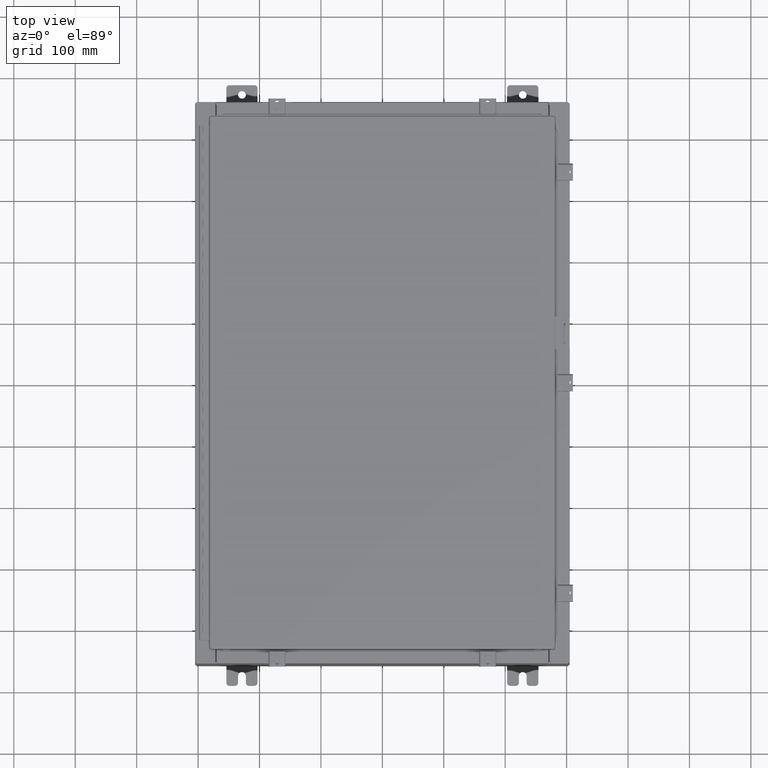
[diagram: clean part render]
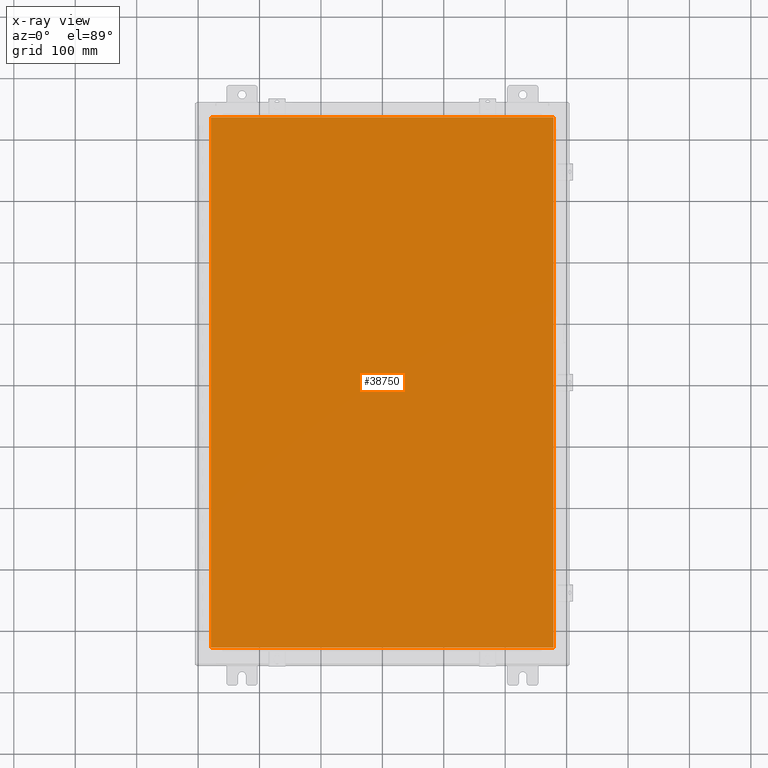
[diagram: x-ray — body ghosted, one internal face saturated and labeled with its STEP entity id]
A machine part, top view, then the same camera in x-ray: the body is ghosted and one INTERNAL B-rep face — a face not visible from any outside direction — is saturated and labeled: STEP entity #38750.
In plain terms, the highlighted planar face has unit normal (0, 0, -1).
Its self-contained STEP definition (entity closure, byte-faithful):
#330 = VECTOR ( 'NONE', #32308, 39.37007874015748100 ) ;
#3507 = EDGE_LOOP ( 'NONE', ( #12686, #3729, #26941, #11597 ) ) ;
#3729 = ORIENTED_EDGE ( 'NONE', *, *, #42117, .F. ) ;
#5797 = CARTESIAN_POINT ( 'NONE',  ( 10.99029999999999600, -17.00629999999999200, -0.07470000000000019700 ) ) ;
#7061 = PLANE ( 'NONE',  #8066 ) ;
#8066 = AXIS2_PLACEMENT_3D ( 'NONE', #33174, #39640, #20176 ) ;
#11597 = ORIENTED_EDGE ( 'NONE', *, *, #17980, .F. ) ;
#12097 = CARTESIAN_POINT ( 'NONE',  ( -10.99030000000000100, 17.00630000000000700, -0.07470000000000000300 ) ) ;
#12686 = ORIENTED_EDGE ( 'NONE', *, *, #36281, .F. ) ;
#13330 = DIRECTION ( 'NONE',  ( -1.000000000000000000, -0.0000000000000000000, -0.0000000000000000000 ) ) ;
#14193 = VERTEX_POINT ( 'NONE', #21343 ) ;
#15305 = CARTESIAN_POINT ( 'NONE',  ( 10.99029999999999600, 17.00630000000000700, -0.07470000000000000300 ) ) ;
#16119 = LINE ( 'NONE', #5797, #26849 ) ;
#16380 = LINE ( 'NONE', #32881, #24020 ) ;
#17980 = EDGE_CURVE ( 'NONE', #38936, #30270, #16380, .T. ) ;
#19686 = CARTESIAN_POINT ( 'NONE',  ( -10.99030000000000000, -17.00629999999999600, -0.07469999999999910000 ) ) ;
#20068 = FACE_OUTER_BOUND ( 'NONE', #3507, .T. ) ;
#20176 = DIRECTION ( 'NONE',  ( -1.000000000000000000, 0.0000000000000000000, -0.0000000000000000000 ) ) ;
#21343 = CARTESIAN_POINT ( 'NONE',  ( -10.99030000000000000, -17.00629999999999600, -0.07470000000000000300 ) ) ;
#24020 = VECTOR ( 'NONE', #13330, 39.37007874015748100 ) ;
#24853 = CARTESIAN_POINT ( 'NONE',  ( 10.99029999999999600, -17.00629999999999600, -0.07470000000000000300 ) ) ;
#26849 = VECTOR ( 'NONE', #28651, 39.37007874015748100 ) ;
#26941 = ORIENTED_EDGE ( 'NONE', *, *, #30987, .F. ) ;
#28651 = DIRECTION ( 'NONE',  ( 0.0000000000000000000, 1.000000000000000000, 0.0000000000000000000 ) ) ;
#30270 = VERTEX_POINT ( 'NONE', #12097 ) ;
#30987 = EDGE_CURVE ( 'NONE', #30270, #14193, #35003, .T. ) ;
#32308 = DIRECTION ( 'NONE',  ( 0.0000000000000000000, -1.000000000000000000, 0.0000000000000000000 ) ) ;
#32881 = CARTESIAN_POINT ( 'NONE',  ( 10.99029999999999800, 17.00630000000000700, -0.07470000000000019700 ) ) ;
#33174 = CARTESIAN_POINT ( 'NONE',  ( 0.0000000000000000000, 0.0000000000000000000, -0.07470000000000000300 ) ) ;
#35003 = LINE ( 'NONE', #38773, #330 ) ;
#35086 = VECTOR ( 'NONE', #35939, 39.37007874015748100 ) ;
#35939 = DIRECTION ( 'NONE',  ( 1.000000000000000000, -0.0000000000000000000, -0.0000000000000000000 ) ) ;
#36095 = LINE ( 'NONE', #19686, #35086 ) ;
#36281 = EDGE_CURVE ( 'NONE', #41205, #38936, #16119, .T. ) ;
#38750 = ADVANCED_FACE ( 'NONE', ( #20068 ), #7061, .T. ) ;
#38773 = CARTESIAN_POINT ( 'NONE',  ( -10.99030000000000500, 17.00630000000000700, -0.07470000000000347200 ) ) ;
#38936 = VERTEX_POINT ( 'NONE', #15305 ) ;
#39640 = DIRECTION ( 'NONE',  ( 0.0000000000000000000, 0.0000000000000000000, -1.000000000000000000 ) ) ;
#41205 = VERTEX_POINT ( 'NONE', #24853 ) ;
#42117 = EDGE_CURVE ( 'NONE', #14193, #41205, #36095, .T. ) ;